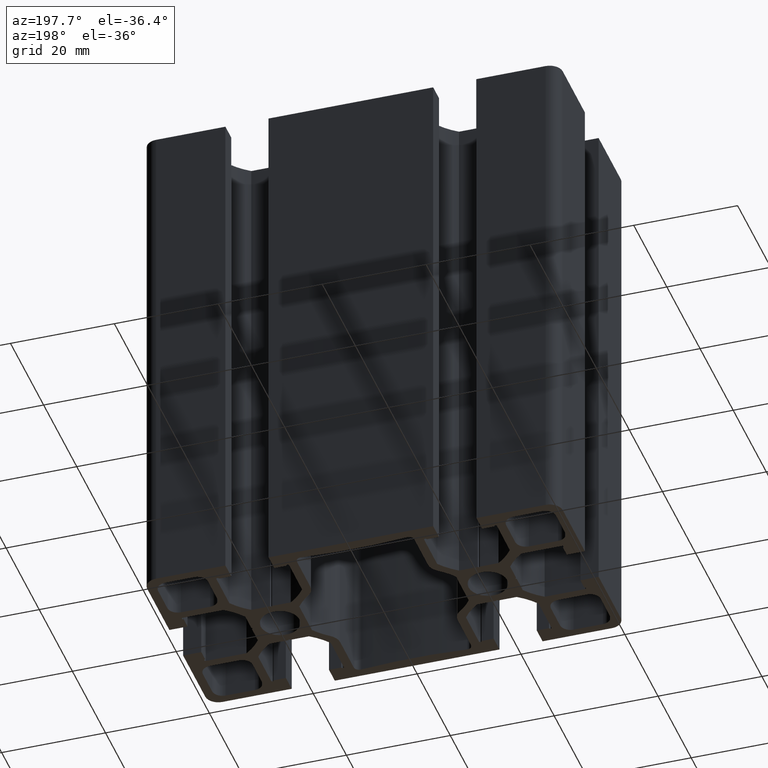
[diagram: clean part render]
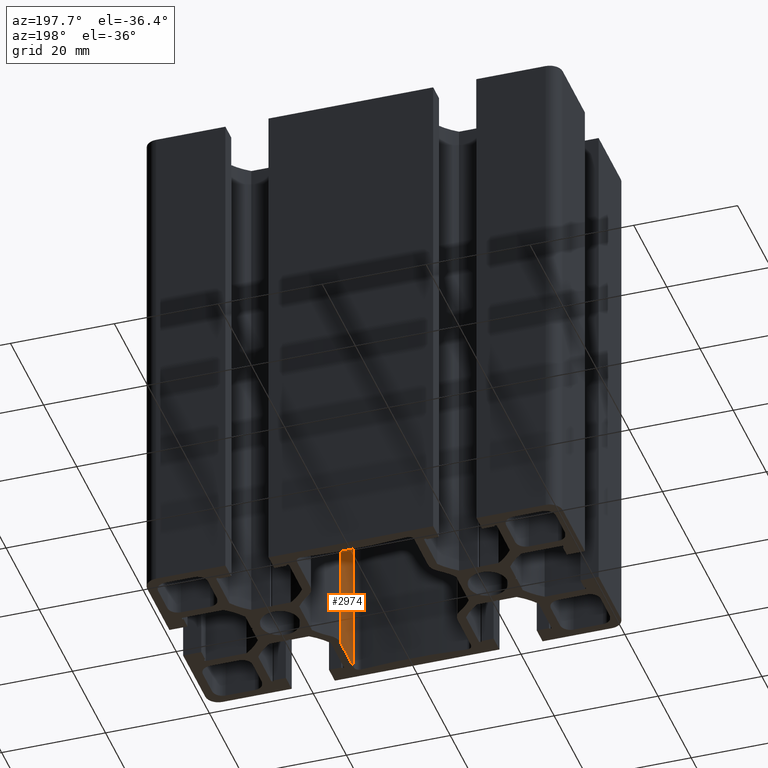
[diagram: same view with one face highlighted and labeled with its STEP entity id]
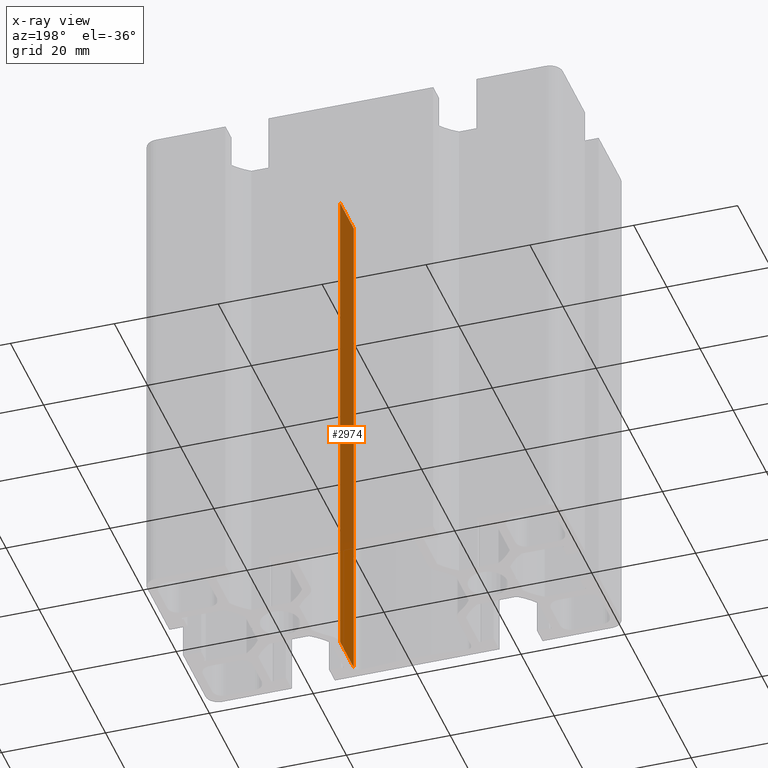
[diagram: x-ray of the same camera — body ghosted, the highlighted face saturated]
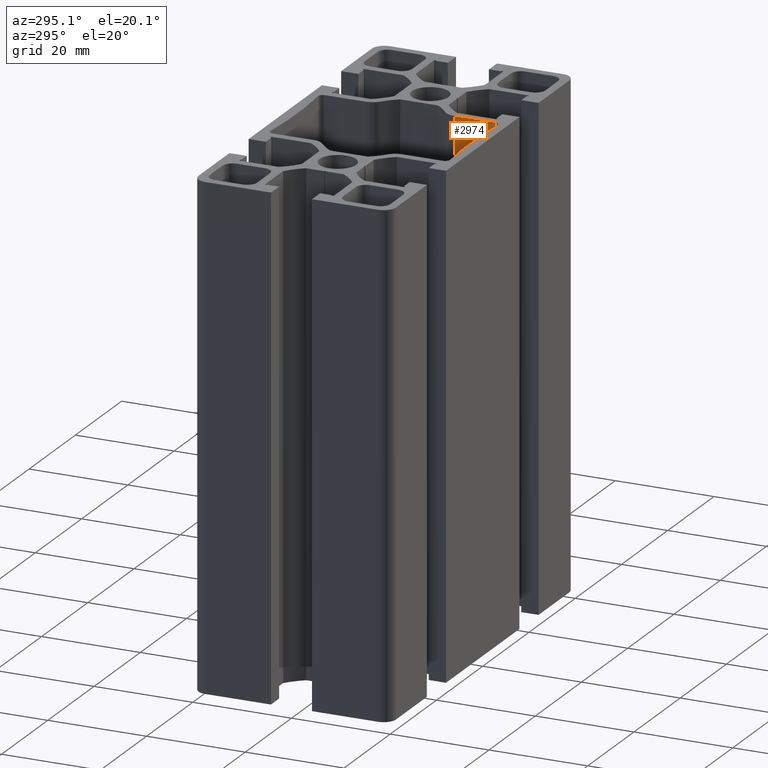
[diagram: same view with one face highlighted and labeled with its STEP entity id]
A machine part, auxiliary view. The second image highlights one B-rep face of the part: STEP entity #2974.
The next image is the same camera in x-ray: the body ghosted, the highlighted face saturated — about 76% of this face is hidden behind the body in this view.
A second angle (auxiliary view) of the same face is appended — the face is thin or edge-on in the first view.
In plain terms, the highlighted planar face has unit normal (1, -0, 0).
Its self-contained STEP definition (entity closure, byte-faithful):
#34=PLANE('',#3146);
#136=FACE_OUTER_BOUND('',#290,.T.);
#290=EDGE_LOOP('',(#2039,#2040,#2041,#2042));
#466=LINE('',#4345,#800);
#467=LINE('',#4349,#801);
#468=LINE('',#4351,#802);
#469=LINE('',#4352,#803);
#800=VECTOR('',#3464,100.);
#801=VECTOR('',#3469,8.23766349700751);
#802=VECTOR('',#3470,100.);
#803=VECTOR('',#3471,8.23766349700751);
#1259=VERTEX_POINT('',#4342);
#1260=VERTEX_POINT('',#4344);
#1261=VERTEX_POINT('',#4348);
#1262=VERTEX_POINT('',#4350);
#1573=EDGE_CURVE('',#1259,#1260,#466,.T.);
#1575=EDGE_CURVE('',#1261,#1259,#467,.T.);
#1576=EDGE_CURVE('',#1261,#1262,#468,.T.);
#1577=EDGE_CURVE('',#1260,#1262,#469,.T.);
#2039=ORIENTED_EDGE('',*,*,#1575,.F.);
#2040=ORIENTED_EDGE('',*,*,#1576,.T.);
#2041=ORIENTED_EDGE('',*,*,#1577,.F.);
#2042=ORIENTED_EDGE('',*,*,#1573,.F.);
#2974=ADVANCED_FACE('',(#136),#34,.F.);
#3146=AXIS2_PLACEMENT_3D('',#4347,#3467,#3468);
#3464=DIRECTION('',(0.,0.,1.));
#3467=DIRECTION('center_axis',(1.,-1.56337863161444E-14,0.));
#3468=DIRECTION('ref_axis',(1.56319401867222E-14,1.,0.));
#3469=DIRECTION('',(1.56337863161444E-14,1.,0.));
#3470=DIRECTION('',(0.,0.,1.));
#3471=DIRECTION('',(-1.56337863161444E-14,-1.,0.));
#4342=CARTESIAN_POINT('',(11.3,-8.95595503726287,0.));
#4344=CARTESIAN_POINT('',(11.3,-8.95595503726287,100.));
#4345=CARTESIAN_POINT('',(11.3,-8.95595503726287,0.));
#4347=CARTESIAN_POINT('Origin',(11.2999999999999,-17.1936185342704,0.));
#4348=CARTESIAN_POINT('',(11.2999999999999,-17.1936185342704,0.));
#4349=CARTESIAN_POINT('',(11.3,-8.59680926713529,0.));
#4350=CARTESIAN_POINT('',(11.2999999999999,-17.1936185342704,100.));
#4351=CARTESIAN_POINT('',(11.2999999999999,-17.1936185342704,0.));
#4352=CARTESIAN_POINT('',(11.3,-8.59680926713529,100.));